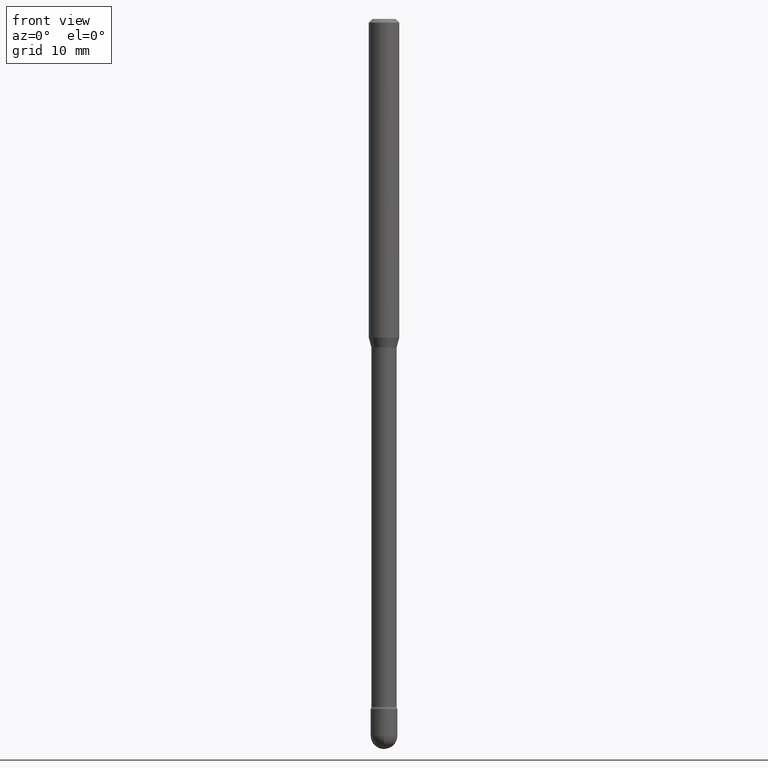
[diagram: clean part render]
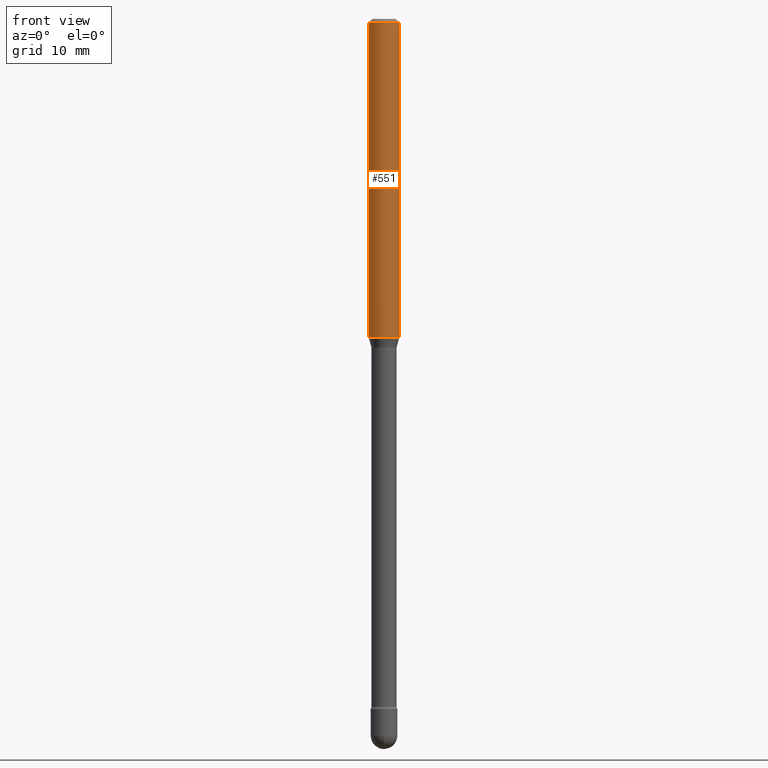
[diagram: same view with one face highlighted and labeled with its STEP entity id]
A machine part, front view. The second image highlights one B-rep face of the part: STEP entity #551.
In plain terms, the highlighted cylindrical surface (edge-blend (fillet) strip) has radius 1.5875 mm, axis along (-0, 0, 1).
Its self-contained STEP definition (entity closure, byte-faithful):
#1 = DIRECTION ( 'NONE',  ( -2.445468806185136877E-29, 3.491481338843145188E-15, 1.000000000000000000 ) ) ;
#12 = CARTESIAN_POINT ( 'NONE',  ( -0.06250000000000000000, -1.868482720859080812E-15, -0.01500000000000008271 ) ) ;
#20 = VECTOR ( 'NONE', #230, 39.37007874015748143 ) ;
#24 = CARTESIAN_POINT ( 'NONE',  ( 0.06250000000000000000, -5.009206808691031841E-15, -1.309693851278255883 ) ) ;
#41 = CYLINDRICAL_SURFACE ( 'NONE', #182, 0.06250000000000000000 ) ;
#48 = LINE ( 'NONE', #217, #150 ) ;
#49 = CARTESIAN_POINT ( 'NONE',  ( 0.06250000000000000000, -4.364351673553899931E-16, 4.780733988912490708E-16 ) ) ;
#57 = ORIENTED_EDGE ( 'NONE', *, *, #468, .T. ) ;
#69 = EDGE_CURVE ( 'NONE', #341, #479, #478, .T. ) ;
#94 = DIRECTION ( 'NONE',  ( -2.445468806185136597E-29, 3.491481338843145583E-15, 1.000000000000000000 ) ) ;
#97 = EDGE_CURVE ( 'NONE', #99, #479, #102, .T. ) ;
#99 = VERTEX_POINT ( 'NONE', #12 ) ;
#102 = CIRCLE ( 'NONE', #288, 0.06250000000000000000 ) ;
#131 = CARTESIAN_POINT ( 'NONE',  ( 0.06250000000000000000, -4.888073874380391431E-16, -0.01500000000000008271 ) ) ;
#150 = VECTOR ( 'NONE', #1, 39.37007874015748143 ) ;
#153 = ORIENTED_EDGE ( 'NONE', *, *, #460, .F. ) ;
#171 = VERTEX_POINT ( 'NONE', #438 ) ;
#172 = DIRECTION ( 'NONE',  ( 1.000000000000000000, -6.982962677686266711E-15, 4.852736867747366207E-29 ) ) ;
#175 = FACE_OUTER_BOUND ( 'NONE', #436, .T. ) ;
#182 = AXIS2_PLACEMENT_3D ( 'NONE', #561, #427, #172 ) ;
#217 = CARTESIAN_POINT ( 'NONE',  ( -0.06250000000000000000, 4.440892098500642925E-16, 4.780733988912429571E-16 ) ) ;
#226 = AXIS2_PLACEMENT_3D ( 'NONE', #476, #94, #422 ) ;
#230 = DIRECTION ( 'NONE',  ( -2.445468806185136877E-29, 3.491481338843145188E-15, 1.000000000000000000 ) ) ;
#277 = ORIENTED_EDGE ( 'NONE', *, *, #97, .F. ) ;
#288 = AXIS2_PLACEMENT_3D ( 'NONE', #311, #444, #350 ) ;
#311 = CARTESIAN_POINT ( 'NONE',  ( 3.668203209277725232E-31, -5.237222008264747365E-17, -0.01500000000000008271 ) ) ;
#341 = VERTEX_POINT ( 'NONE', #24 ) ;
#350 = DIRECTION ( 'NONE',  ( 1.000000000000000000, -6.982962677686266711E-15, 0.000000000000000000 ) ) ;
#373 = ORIENTED_EDGE ( 'NONE', *, *, #69, .T. ) ;
#422 = DIRECTION ( 'NONE',  ( 1.000000000000000000, -6.982962677686262766E-15, 0.000000000000000000 ) ) ;
#427 = DIRECTION ( 'NONE',  ( -2.445468806185136597E-29, 3.491481338843145583E-15, 1.000000000000000000 ) ) ;
#436 = EDGE_LOOP ( 'NONE', ( #153, #57, #373, #277 ) ) ;
#438 = CARTESIAN_POINT ( 'NONE',  ( -0.06250000000000000000, -4.128682431485577556E-15, -1.309693851278255883 ) ) ;
#444 = DIRECTION ( 'NONE',  ( -2.445468806185136597E-29, 3.491481338843145583E-15, 1.000000000000000000 ) ) ;
#459 = CIRCLE ( 'NONE', #226, 0.06250000000000000000 ) ;
#460 = EDGE_CURVE ( 'NONE', #171, #99, #48, .T. ) ;
#468 = EDGE_CURVE ( 'NONE', #171, #341, #459, .T. ) ;
#476 = CARTESIAN_POINT ( 'NONE',  ( 3.202815458953449812E-29, -4.572771641335639383E-15, -1.309693851278255883 ) ) ;
#478 = LINE ( 'NONE', #49, #20 ) ;
#479 = VERTEX_POINT ( 'NONE', #131 ) ;
#551 = ADVANCED_FACE ( 'NONE', ( #175 ), #41, .T. ) ;
#561 = CARTESIAN_POINT ( 'NONE',  ( -1.169113584055446105E-44, 1.669184350826100908E-30, 4.780733988912460139E-16 ) ) ;